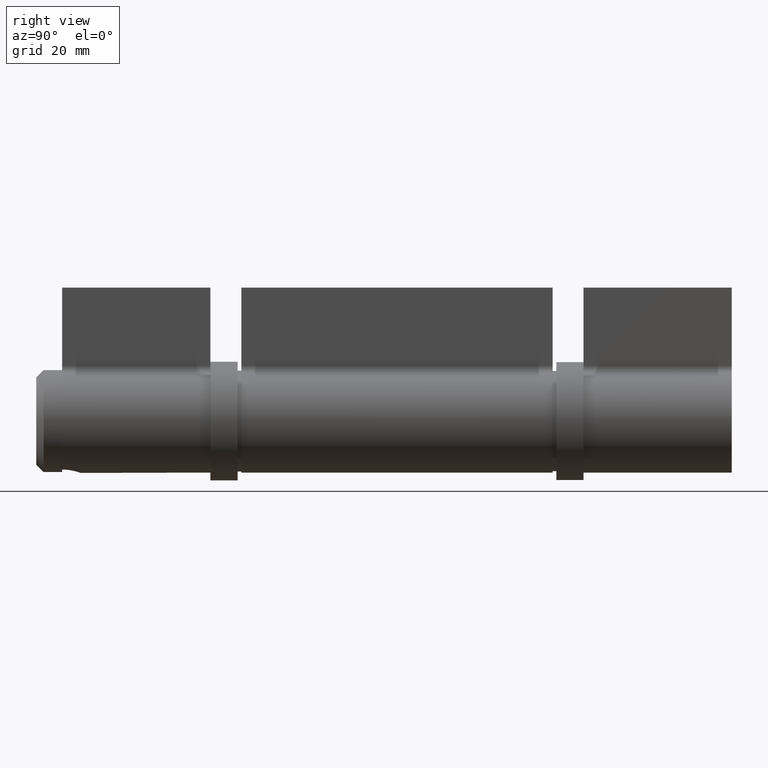
[diagram: clean part render]
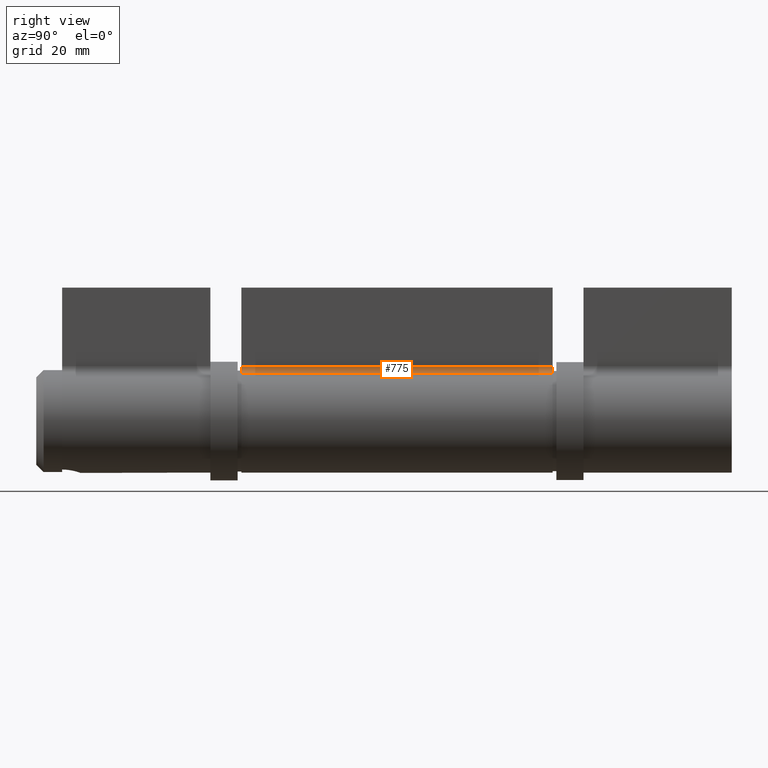
[diagram: same view with one face highlighted and labeled with its STEP entity id]
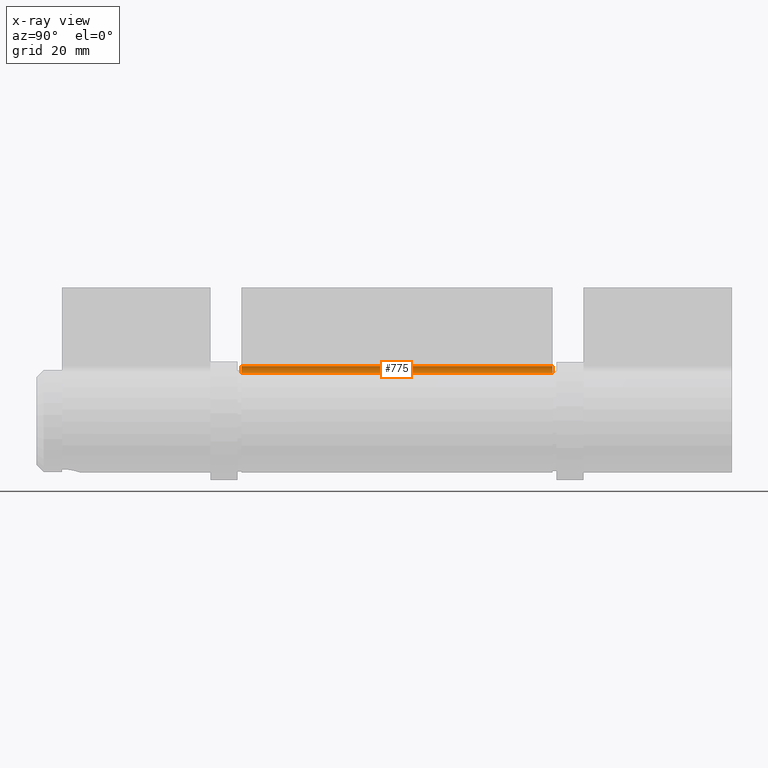
[diagram: x-ray of the same camera — body ghosted, the highlighted face saturated]
A machine part, right view. The second image highlights one B-rep face of the part: STEP entity #775.
The next image is the same camera in x-ray: the body ghosted, the highlighted face saturated — about 0% of this face is hidden behind the body in this view.
In plain terms, the highlighted cylindrical surface (edge-blend (fillet) strip) has radius 2 mm, axis along (0, -1, 0).
Its self-contained STEP definition (entity closure, byte-faithful):
#28 = AXIS2_PLACEMENT_3D ( 'NONE', #76, #1039, #4192 ) ;
#76 = CARTESIAN_POINT ( 'NONE',  ( -6.049999999999999822, -42.00000000000000000, -14.81207277864917948 ) ) ;
#242 = EDGE_CURVE ( 'NONE', #3739, #9604, #1476, .T. ) ;
#472 = VERTEX_POINT ( 'NONE', #6078 ) ;
#494 = CARTESIAN_POINT ( 'NONE',  ( -5.293749999999995737, 42.00000000000000000, -12.96056368131803538 ) ) ;
#616 = CYLINDRICAL_SURFACE ( 'NONE', #1279, 1.999999999999998224 ) ;
#702 = EDGE_CURVE ( 'NONE', #9716, #9604, #7546, .T. ) ;
#775 = ADVANCED_FACE ( 'NONE', ( #1468 ), #616, .F. ) ;
#1039 = DIRECTION ( 'NONE',  ( 0.000000000000000000, 1.000000000000000000, -0.000000000000000000 ) ) ;
#1111 = DIRECTION ( 'NONE',  ( 0.000000000000000000, 0.000000000000000000, -1.000000000000000000 ) ) ;
#1279 = AXIS2_PLACEMENT_3D ( 'NONE', #5852, #3201, #1111 ) ;
#1468 = FACE_OUTER_BOUND ( 'NONE', #4870, .T. ) ;
#1476 = LINE ( 'NONE', #3376, #3064 ) ;
#1497 = ORIENTED_EDGE ( 'NONE', *, *, #702, .F. ) ;
#2382 = DIRECTION ( 'NONE',  ( 0.000000000000000000, 1.000000000000000000, -0.000000000000000000 ) ) ;
#2970 = ORIENTED_EDGE ( 'NONE', *, *, #5599, .F. ) ;
#3064 = VECTOR ( 'NONE', #8192, 1000.000000000000000 ) ;
#3201 = DIRECTION ( 'NONE',  ( -0.000000000000000000, -1.000000000000000000, -0.000000000000000000 ) ) ;
#3376 = CARTESIAN_POINT ( 'NONE',  ( -4.049999999999999822, 42.00000000000000000, -14.81207277864917948 ) ) ;
#3467 = AXIS2_PLACEMENT_3D ( 'NONE', #7896, #2382, #8740 ) ;
#3739 = VERTEX_POINT ( 'NONE', #8943 ) ;
#4192 = DIRECTION ( 'NONE',  ( 0.000000000000000000, 0.000000000000000000, 1.000000000000000000 ) ) ;
#4315 = CARTESIAN_POINT ( 'NONE',  ( -4.049999999999999822, -42.00000000000000000, -14.81207277864917948 ) ) ;
#4856 = VECTOR ( 'NONE', #5335, 1000.000000000000000 ) ;
#4870 = EDGE_LOOP ( 'NONE', ( #1497, #2970, #8892, #6321 ) ) ;
#5335 = DIRECTION ( 'NONE',  ( -0.000000000000000000, -1.000000000000000000, -0.000000000000000000 ) ) ;
#5599 = EDGE_CURVE ( 'NONE', #472, #9716, #8576, .T. ) ;
#5852 = CARTESIAN_POINT ( 'NONE',  ( -6.049999999999999822, 42.00000000000000000, -14.81207277864917948 ) ) ;
#6078 = CARTESIAN_POINT ( 'NONE',  ( -5.293749999999995737, 42.00000000000000000, -12.96056368131803538 ) ) ;
#6321 = ORIENTED_EDGE ( 'NONE', *, *, #242, .T. ) ;
#6850 = EDGE_CURVE ( 'NONE', #472, #3739, #8878, .T. ) ;
#7546 = CIRCLE ( 'NONE', #28, 2.000000000000000000 ) ;
#7617 = CARTESIAN_POINT ( 'NONE',  ( -5.293749999999995737, -42.00000000000000000, -12.96056368131803538 ) ) ;
#7896 = CARTESIAN_POINT ( 'NONE',  ( -6.049999999999999822, 42.00000000000000000, -14.81207277864917948 ) ) ;
#8192 = DIRECTION ( 'NONE',  ( -0.000000000000000000, -1.000000000000000000, -0.000000000000000000 ) ) ;
#8576 = LINE ( 'NONE', #494, #4856 ) ;
#8740 = DIRECTION ( 'NONE',  ( 0.000000000000000000, 0.000000000000000000, 1.000000000000000000 ) ) ;
#8878 = CIRCLE ( 'NONE', #3467, 2.000000000000000000 ) ;
#8892 = ORIENTED_EDGE ( 'NONE', *, *, #6850, .T. ) ;
#8943 = CARTESIAN_POINT ( 'NONE',  ( -4.049999999999999822, 42.00000000000000000, -14.81207277864917948 ) ) ;
#9604 = VERTEX_POINT ( 'NONE', #4315 ) ;
#9716 = VERTEX_POINT ( 'NONE', #7617 ) ;